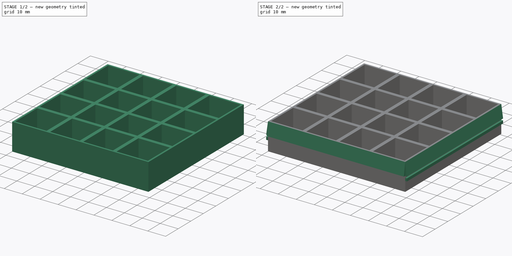
[diagram: build sequence overview — one tinted view per stage of 2, left to right]
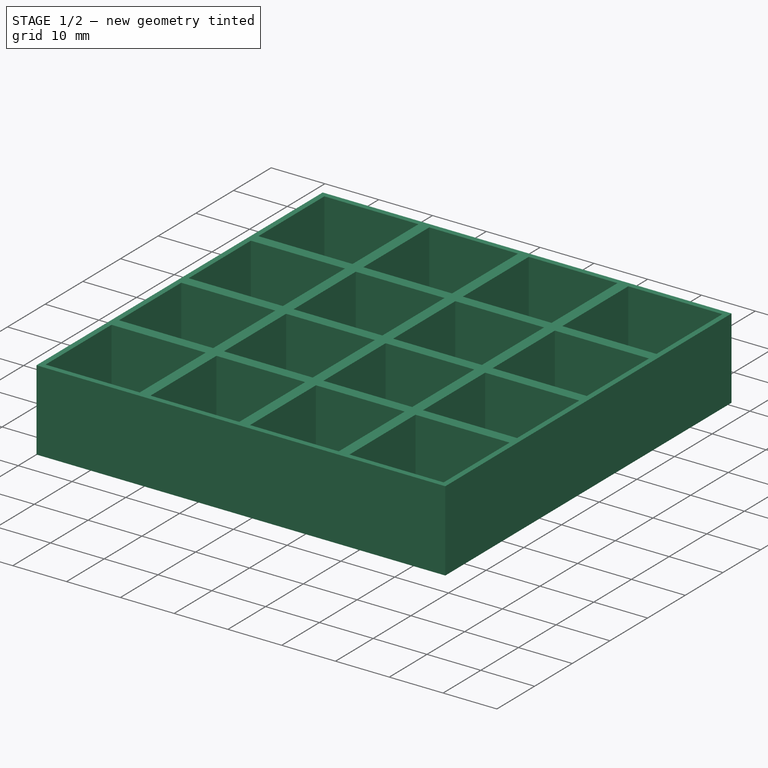
[diagram: stage 1 of 2 — iso view after this stage's code; geometry added in this stage tinted green]
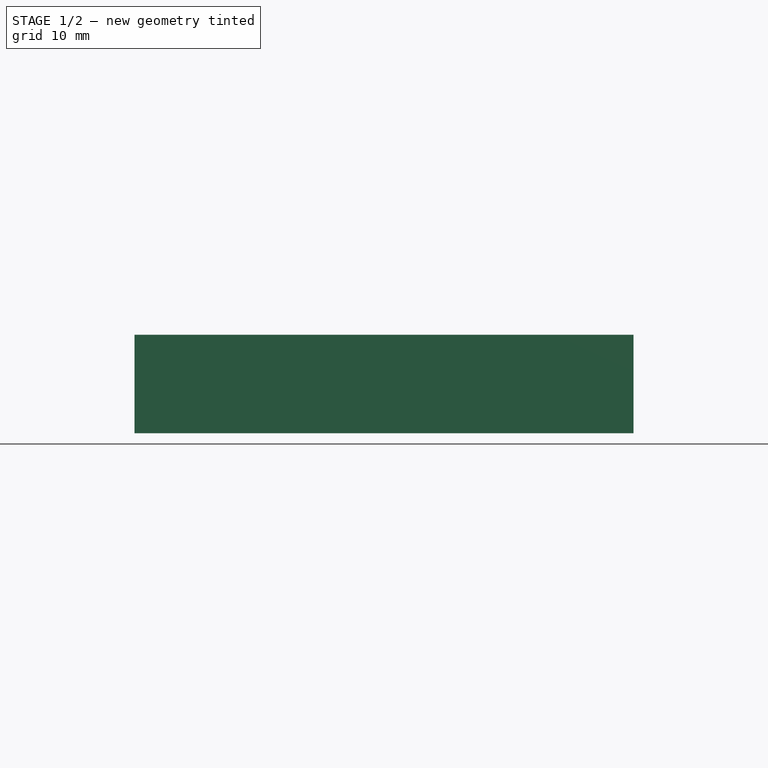
[diagram: stage 1 of 2 — front view after this stage's code; geometry added in this stage tinted green]
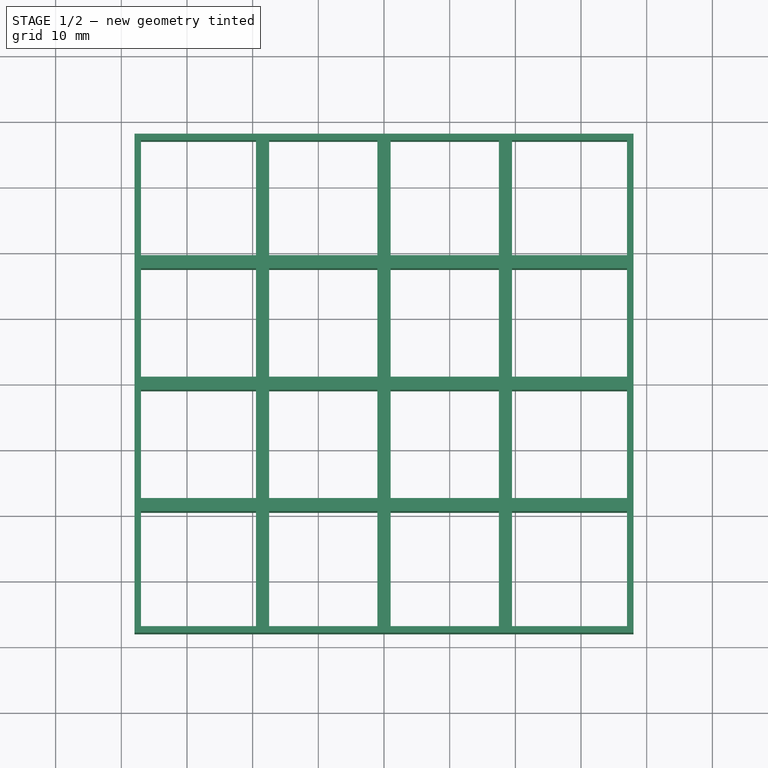
[diagram: stage 1 of 2 — top view after this stage's code; geometry added in this stage tinted green]
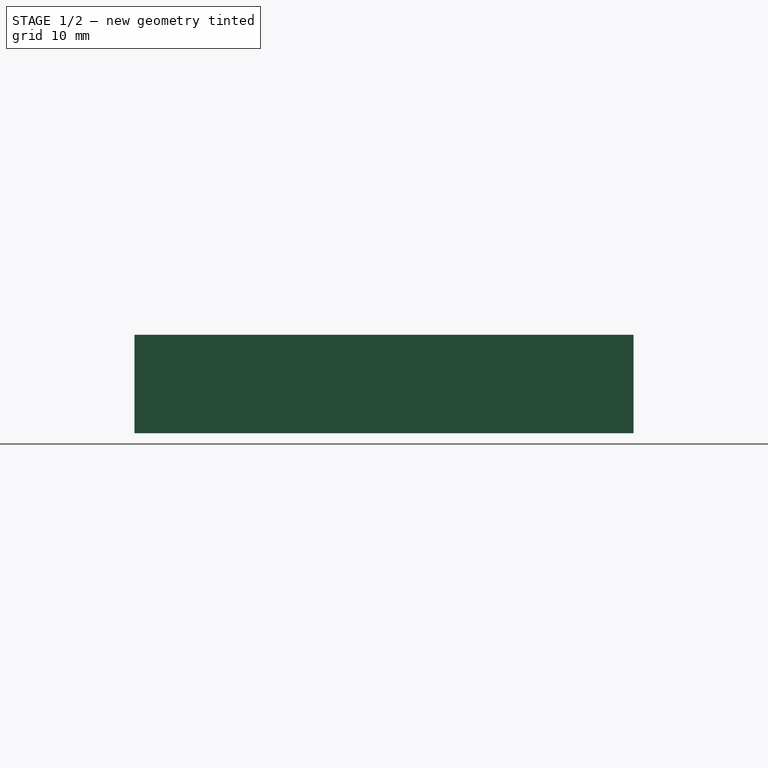
[diagram: stage 1 of 2 — right view after this stage's code; geometry added in this stage tinted green]
FCSTD DOCUMENT  (FreeCAD 1.0R39109 (Git))
Label: elidus_kuben_shade
License: All rights reserved
LicenseURL: https://en.wikipedia.org/wiki/All_rights_reserved
objects: Sketcher::SketchObject×4, PartDesign::Pad×4, PartDesign::Body×1
note: 21 computed .brp shape members not serialized (recipe doc carries the construction recipe); baked Part::Feature solids carry a one-line shape summary decoded from their .brp

FEATURE [Sketcher::SketchObject] Sketch
  ArcFitTolerance = 1e-06
  AttachmentSupport = -> [XY_Plane]
  FullyConstrained = false
  MakeInternals = false
  MapMode = 5
  sketch-geometry (9):
    g0: LineSegment StartX=-38 StartY=-38 StartZ=0 EndX=38 EndY=-38 EndZ=0
    g1: LineSegment StartX=38 StartY=-38 StartZ=0 EndX=38 EndY=38 EndZ=0
    g2: LineSegment StartX=38 StartY=38 StartZ=0 EndX=-38 EndY=38 EndZ=0
    g3: LineSegment StartX=-38 StartY=38 StartZ=0 EndX=-38 EndY=-38 EndZ=0
    g4: GeomPoint [constr] X=0 Y=0 Z=0
    g5: LineSegment StartX=-37 StartY=37 StartZ=0 EndX=-37 EndY=-37 EndZ=0
    g6: LineSegment StartX=-37 StartY=-37 StartZ=0 EndX=37 EndY=-37 EndZ=0
    g7: LineSegment StartX=37 StartY=-37 StartZ=0 EndX=37 EndY=37 EndZ=0
    g8: LineSegment StartX=37 StartY=37 StartZ=0 EndX=-37 EndY=37 EndZ=0
  constraints (18):
    c: Coincident(g0,g1)
    c: Coincident(g1,g2)
    c: Coincident(g2,g3)
    c: Coincident(g3,g0)
    c: Horizontal(g0)
    c: Horizontal(g2)
    c: Vertical(g1)
    c: Vertical(g3)
    c: Symmetric(g2,g0,g4)
    c: Distance(g1,g3) = 76
    c: Distance(g0,g2) = 76
    c: Coincident(g4,g-1)
    c: Coincident(g5,g6)
    c: Coincident(g5,g8)
    c: Coincident(g6,g7)
    c: Coincident(g7,g8)
    c: DistanceY(g5,g5) = 74
    c: DistanceX(g6,g6) = 74
FEATURE [Sketcher::SketchObject] Sketch001
  ArcFitTolerance = 1e-06
  AttachmentSupport = -> [XY_Plane]
  ExternalGeometry = -> [Sketch]
  FullyConstrained = false
  MakeInternals = false
  MapMode = 5
  sketch-geometry (36):
    g0: LineSegment StartX=-17.5 StartY=37 StartZ=0 EndX=-17.5 EndY=12.3333 EndZ=0
    g1: LineSegment StartX=-17.5 StartY=12.3333 StartZ=0 EndX=-17.5 EndY=-37 EndZ=0
    g2: LineSegment StartX=-19.5 StartY=12.3333 StartZ=0 EndX=-19.5 EndY=-37 EndZ=0
    g3: LineSegment StartX=-19.5 StartY=37 StartZ=0 EndX=-19.5 EndY=12.3333 EndZ=0
    g4: LineSegment StartX=-37 StartY=19.5 StartZ=0 EndX=-12.3333 EndY=19.5 EndZ=0
    g5: LineSegment StartX=-12.3333 StartY=19.5 StartZ=0 EndX=37 EndY=19.5 EndZ=0
    g6: LineSegment StartX=-12.3333 StartY=17.5 StartZ=0 EndX=37 EndY=17.5 EndZ=0
    g7: LineSegment StartX=-37 StartY=17.5 StartZ=0 EndX=-12.3333 EndY=17.5 EndZ=0
    g8: LineSegment StartX=19.5 StartY=37 StartZ=0 EndX=19.5 EndY=12.3333 EndZ=0
    g9: LineSegment StartX=19.5 StartY=12.3333 StartZ=0 EndX=19.5 EndY=-37 EndZ=0
    g10: LineSegment StartX=17.5 StartY=12.3333 StartZ=0 EndX=17.5 EndY=-37 EndZ=0
    g11: LineSegment StartX=17.5 StartY=37 StartZ=0 EndX=17.5 EndY=12.3333 EndZ=0
    g12: LineSegment StartX=-37 StartY=-17.5 StartZ=0 EndX=-12.3333 EndY=-17.5 EndZ=0
    g13: LineSegment StartX=-12.3333 StartY=-17.5 StartZ=0 EndX=37 EndY=-17.5 EndZ=0
    g14: LineSegment StartX=-12.3333 StartY=-19.5 StartZ=0 EndX=37 EndY=-19.5 EndZ=0
    g15: LineSegment StartX=-37 StartY=-19.5 StartZ=0 EndX=-12.3333 EndY=-19.5 EndZ=0
    g16: LineSegment StartX=-1 StartY=-37 StartZ=0 EndX=-1 EndY=-12.3333 EndZ=0
    g17: LineSegment StartX=-1 StartY=-12.3333 StartZ=0 EndX=-1 EndY=37 EndZ=0
    g18: LineSegment StartX=1 StartY=-12.3333 StartZ=0 EndX=1 EndY=37 EndZ=0
    g19: LineSegment StartX=1 StartY=-37 StartZ=0 EndX=1 EndY=-12.3333 EndZ=0
    g20: LineSegment StartX=-37 StartY=1 StartZ=0 EndX=-12.3333 EndY=1 EndZ=0
    g21: LineSegment StartX=-12.3333 StartY=1 StartZ=0 EndX=37 EndY=1 EndZ=0
    g22: LineSegment StartX=-12.3333 StartY=-1 StartZ=0 EndX=37 EndY=-1 EndZ=0
    g23: LineSegment StartX=-37 StartY=-1 StartZ=0 EndX=-12.3333 EndY=-1 EndZ=0
    g24: LineSegment StartX=-37 StartY=-19.5 StartZ=0 EndX=-37 EndY=-17.5 EndZ=0
    g25: LineSegment StartX=-37 StartY=-1 StartZ=0 EndX=-37 EndY=1 EndZ=0
    g26: LineSegment StartX=-37 StartY=17.5 StartZ=0 EndX=-37 EndY=19.5 EndZ=0
    g27: LineSegment StartX=-19.5 StartY=37 StartZ=0 EndX=-17.5 EndY=37 EndZ=0
    g28: LineSegment StartX=-1 StartY=37 StartZ=0 EndX=1 EndY=37 EndZ=0
    g29: LineSegment StartX=17.5 StartY=37 StartZ=0 EndX=19.5 EndY=37 EndZ=0
    g30: LineSegment StartX=37 StartY=19.5 StartZ=0 EndX=37 EndY=17.5 EndZ=0
    g31: LineSegment StartX=37 StartY=1 StartZ=0 EndX=37 EndY=-1 EndZ=0
    g32: LineSegment StartX=37 StartY=-17.5 StartZ=0 EndX=37 EndY=-19.5 EndZ=0
    g33: LineSegment StartX=17.5 StartY=-37 StartZ=0 EndX=19.5 EndY=-37 EndZ=0
    g34: LineSegment StartX=-1 StartY=-37 StartZ=0 EndX=1 EndY=-37 EndZ=0
    g35: LineSegment StartX=-17.5 StartY=-37 StartZ=0 EndX=-19.5 EndY=-37 EndZ=0
  constraints (40):
    c: Coincident(g16,g17)
    c: Coincident(g18,g19)
    c: Coincident(g20,g21)
    c: Coincident(g22,g23)
    c: Coincident(g24,g15)
    c: Coincident(g24,g12)
    c: Vertical(g24)
    c: Coincident(g25,g23)
    c: Coincident(g25,g20)
    c: Vertical(g25)
    c: Coincident(g26,g7)
    c: Coincident(g26,g4)
    c: Vertical(g26)
    c: Coincident(g27,g3)
    c: Coincident(g27,g0)
    c: Horizontal(g27)
    c: Coincident(g28,g17)
    c: Coincident(g28,g18)
    c: Horizontal(g28)
    c: Coincident(g29,g11)
    c: Coincident(g29,g8)
    c: Horizontal(g29)
    c: Coincident(g30,g5)
    c: Coincident(g30,g6)
    c: Vertical(g30)
    c: Coincident(g31,g21)
    c: Coincident(g31,g22)
    c: Vertical(g31)
    c: Coincident(g32,g13)
    c: Coincident(g32,g14)
    c: Vertical(g32)
    c: Coincident(g33,g10)
    c: Coincident(g33,g9)
    c: Horizontal(g33)
    c: Coincident(g34,g16)
    c: Coincident(g34,g19)
    c: Horizontal(g34)
    c: Coincident(g35,g1)
    c: Coincident(g35,g2)
    c: Horizontal(g35)
FEATURE [PartDesign::Pad] Pad  label="External Frame"
  Direction = (0,0,1)
  Length = 15
  Length2 = 10
  Profile = -> Sketch
  ReferenceAxis = -> Sketch [N_Axis]
  Refine = true
  Suppressed = false
  Type = 0
FEATURE [PartDesign::Pad] Pad001  label="Internal Frame"
  BaseFeature = -> Pad
  Direction = (0,0,1)
  Length = 15
  Length2 = 10
  Profile = -> Sketch001
  ReferenceAxis = -> Sketch001 [N_Axis]
  Refine = true
  Suppressed = false
  Type = 0
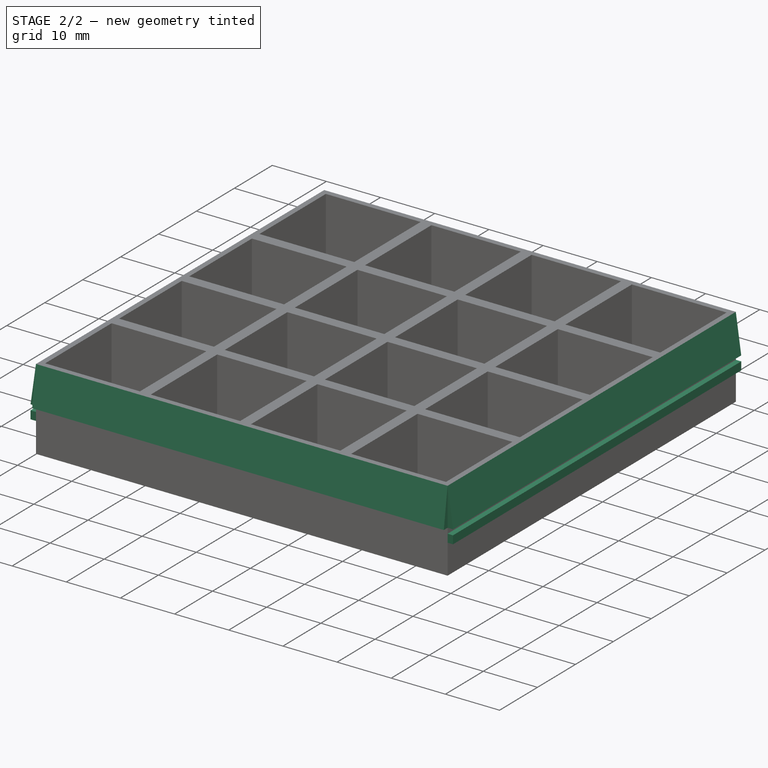
[diagram: stage 2 of 2 — iso view after this stage's code; geometry added in this stage tinted green]
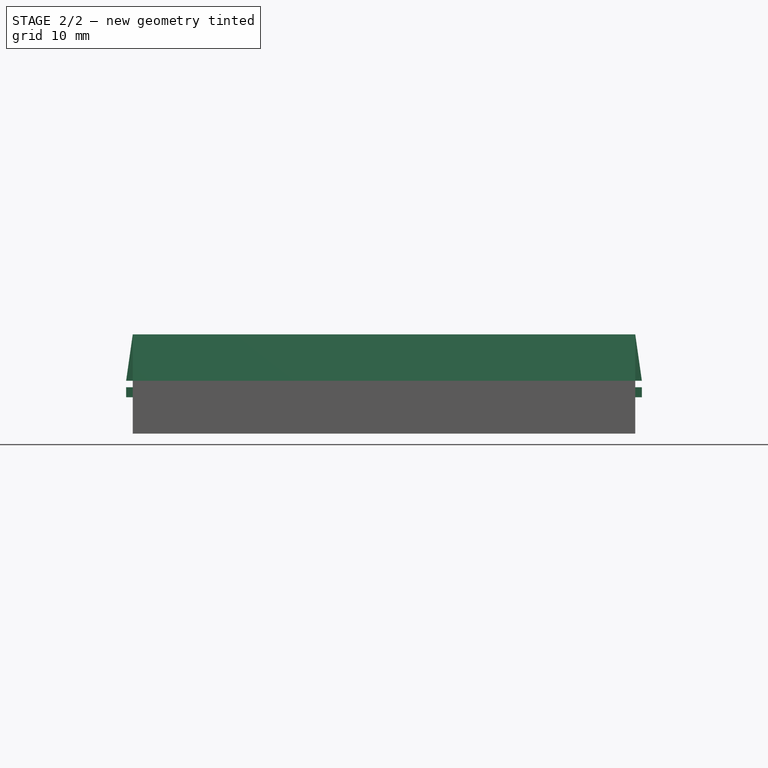
[diagram: stage 2 of 2 — front view after this stage's code; geometry added in this stage tinted green]
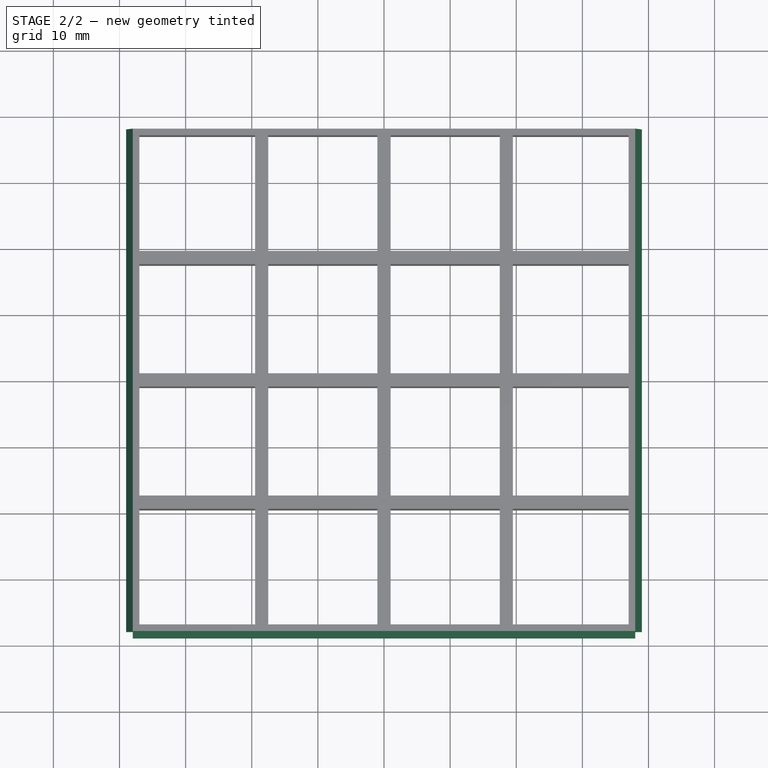
[diagram: stage 2 of 2 — top view after this stage's code; geometry added in this stage tinted green]
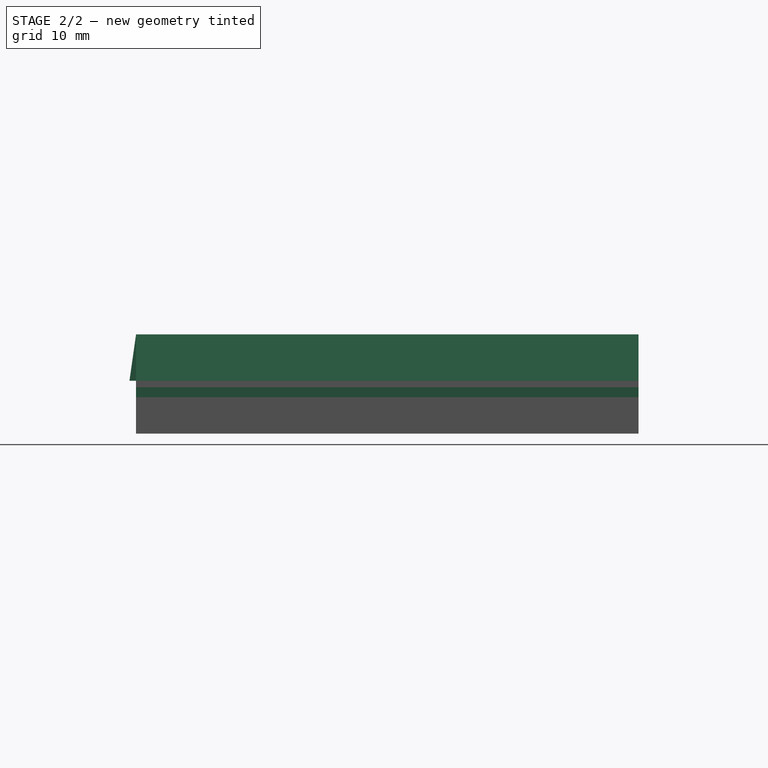
[diagram: stage 2 of 2 — right view after this stage's code; geometry added in this stage tinted green]
FEATURE [Sketcher::SketchObject] Sketch002
  ArcFitTolerance = 1e-06
  AttachmentSupport = -> [Pad001]
  ExternalGeometry = -> [Pad001]
  FullyConstrained = true
  MakeInternals = false
  MapMode = 5
  Placement = pos=(0,-38,0) rot=(1,0,0;1.5708rad)
  sketch-geometry (21):
    g0: GeomPoint X=-38 Y=8 Z=0
    g1: LineSegment StartX=-39 StartY=8 StartZ=0 EndX=-38 EndY=8 EndZ=0
    g2: LineSegment StartX=-39 StartY=8 StartZ=0 EndX=-38 EndY=15 EndZ=0
    g3: LineSegment StartX=-38 StartY=8 StartZ=0 EndX=-38 EndY=7 EndZ=0
    g4: LineSegment StartX=-38 StartY=7 StartZ=0 EndX=-39 EndY=7 EndZ=0
    g5: LineSegment StartX=-38 StartY=5.5 StartZ=0 EndX=-39 EndY=5.5 EndZ=0
    g6: LineSegment StartX=-39 StartY=7 StartZ=0 EndX=-39 EndY=5.5 EndZ=0
    g7: LineSegment StartX=38 StartY=8 StartZ=0 EndX=39 EndY=8 EndZ=0
    g8: LineSegment StartX=38 StartY=15 StartZ=0 EndX=39 EndY=8 EndZ=0
    g9: LineSegment StartX=38 StartY=8 StartZ=0 EndX=38 EndY=7 EndZ=0
    g10: LineSegment StartX=38 StartY=7 StartZ=0 EndX=39 EndY=7 EndZ=0
    g11: LineSegment StartX=38 StartY=5.5 StartZ=0 EndX=39 EndY=5.5 EndZ=0
    g12: LineSegment StartX=39 StartY=7 StartZ=0 EndX=39 EndY=5.5 EndZ=0
    g13: LineSegment StartX=-38 StartY=5.5 StartZ=0 EndX=-38 EndY=0 EndZ=0
    g14: LineSegment StartX=38 StartY=5.5 StartZ=0 EndX=38 EndY=0 EndZ=0
    g15: LineSegment StartX=-38 StartY=15 StartZ=0 EndX=-37 EndY=15 EndZ=0
    g16: LineSegment StartX=-38 StartY=0 StartZ=0 EndX=-37 EndY=0 EndZ=0
    g17: LineSegment StartX=-37 StartY=15 StartZ=0 EndX=-37 EndY=0 EndZ=0
    g18: LineSegment StartX=38 StartY=15 StartZ=0 EndX=37 EndY=15 EndZ=0
    g19: LineSegment StartX=38 StartY=0 StartZ=0 EndX=37 EndY=0 EndZ=0
    g20: LineSegment StartX=37 StartY=15 StartZ=0 EndX=37 EndY=0 EndZ=0
  constraints (59):
    c: DistanceY(g0) = 8
    c: Coincident(g1,g0)
    c: Horizontal(g1)
    c: DistanceX(g1,g1) = 1
    c: Coincident(g2,g1)
    c: Distance(g3) = 1
    c: Coincident(g3,g0)
    c: Vertical(g3)
    c: Distance(g4) = 1
    c: Coincident(g4,g3)
    c: Horizontal(g4)
    c: Distance(g5) = 1
    c: Horizontal(g5)
    c: Coincident(g6,g4)
    c: Coincident(g6,g5)
    c: Distance(g7) = 1
    c: Horizontal(g7)
    c: Coincident(g8,g7)
    c: Distance(g9) = 1
    c: PointOnObject(g9,g-3)
    c: PointOnObject(g11,g-3)
    c: Distance(g10) = 1
    c: Coincident(g10,g9)
    c: Horizontal(g10)
    c: Distance(g11) = 1
    c: Horizontal(g11)
    c: Coincident(g12,g10)
    c: Coincident(g12,g11)
    c: Coincident(g13,g-5)
    c: Coincident(g14,g-5)
    c: Distance(g15) = 1
    c: PointOnObject(g15,g-4)
    c: Distance(g16) = 1
    c: Coincident(g16,g13)
    c: PointOnObject(g16,g-5)
    c: Coincident(g17,g15)
    c: Coincident(g17,g16)
    c: Distance(g18) = 1
    c: PointOnObject(g18,g-4)
    c: Distance(g19) = 1
    c: Coincident(g19,g14)
    c: PointOnObject(g19,g-5)
    c: Coincident(g20,g18)
    c: Coincident(g20,g19)
    c: Coincident(g15,g2)
    c: DistanceY(g13,g3) = 1.5
    c: Parallel(g13,g17)
    c: Coincident(g5,g13)
    c: Coincident(g8,g18)
    c: DistanceY(g7,g8) = 7
    c: Coincident(g9,g7)
    c: DistanceY(g11,g9) = 1.5
    c: Coincident(g14,g11)
    c: DistanceY(g0,g2) = 7
    c: Parallel(g17,g-2)
    c: Parallel(g6,g17)
    c: Parallel(g9,g20)
    c: Parallel(g18,g-5)
    c: Parallel(g20,g-2)
FEATURE [PartDesign::Pad] Pad002  label="Side Teeth"
  BaseFeature = -> Pad001
  Direction = (0,-1,2e-16)
  Length = 76
  Length2 = 10
  Profile = -> Sketch002
  ReferenceAxis = -> Sketch002 [N_Axis]
  Refine = true
  Reversed = true
  Suppressed = false
  Type = 0
FEATURE [Sketcher::SketchObject] Sketch004
  ArcFitTolerance = 1e-06
  AttachmentSupport = -> [Pad]
  ExternalGeometry = -> [Pad,Sketch]
  FullyConstrained = false
  MakeInternals = false
  MapMode = 5
  Placement = pos=(-38,0,0) rot=(0.57735,-0.57735,-0.57735;2.0944rad)
  sketch-geometry (4):
    g0: LineSegment StartX=38 StartY=15 StartZ=0 EndX=37 EndY=15 EndZ=0
    g1: LineSegment StartX=37 StartY=15 StartZ=0 EndX=37 EndY=8 EndZ=0
    g2: LineSegment StartX=38 StartY=15 StartZ=0 EndX=39 EndY=8 EndZ=0
    g3: LineSegment StartX=37 StartY=8 StartZ=0 EndX=39 EndY=8 EndZ=0
  constraints (10):
    c: Distance(g0) = 1
    c: Distance(g1) = 7
    c: Parallel(g-2,g1)
    c: Coincident(g1,g0)
    c: Coincident(g0,g-3)
    c: Coincident(g2,g0)
    c: Distance(g3) = 2
    c: Horizontal(g3)
    c: Coincident(g3,g1)
    c: Coincident(g3,g2)
FEATURE [PartDesign::Pad] Pad004  label="Back Side"
  BaseFeature = -> Pad002
  Direction = (-1,0,0)
  Length = 76
  Length2 = 10
  Profile = -> Sketch004
  ReferenceAxis = -> Sketch004 [N_Axis]
  Refine = true
  Reversed = true
  Suppressed = false
  Type = 0
FEATURE [PartDesign::Body] Body
  AllowCompound = false
  Group = -> [Sketch,Sketch001,Pad,Pad001,Sketch002,Pad002,Sketch004,Pad004]
  Origin = -> Origin
  Tip = -> Pad004
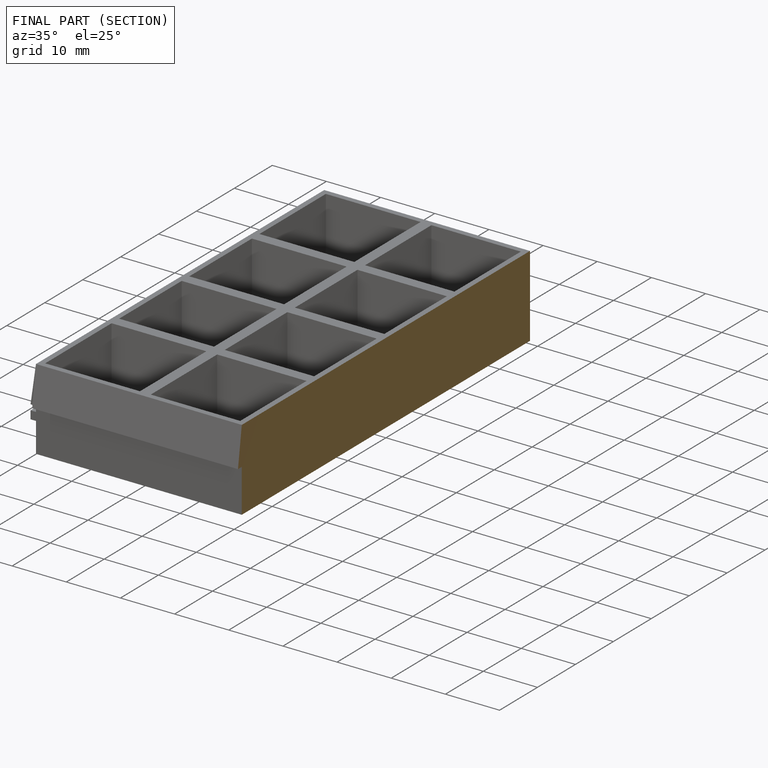
[diagram: finished part — half-section view (interior)]
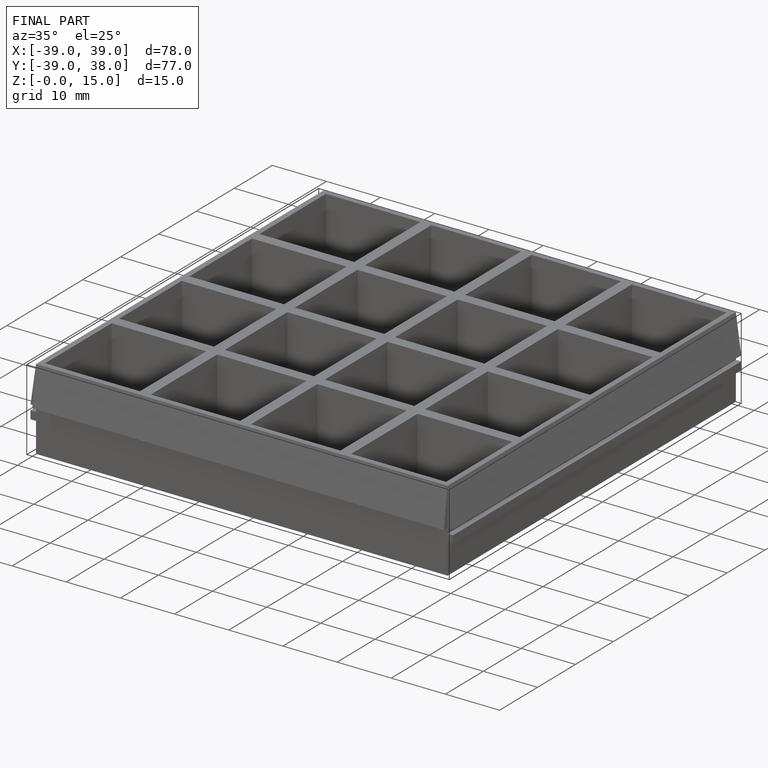
[diagram: finished part — iso view with bounding-box wireframe]
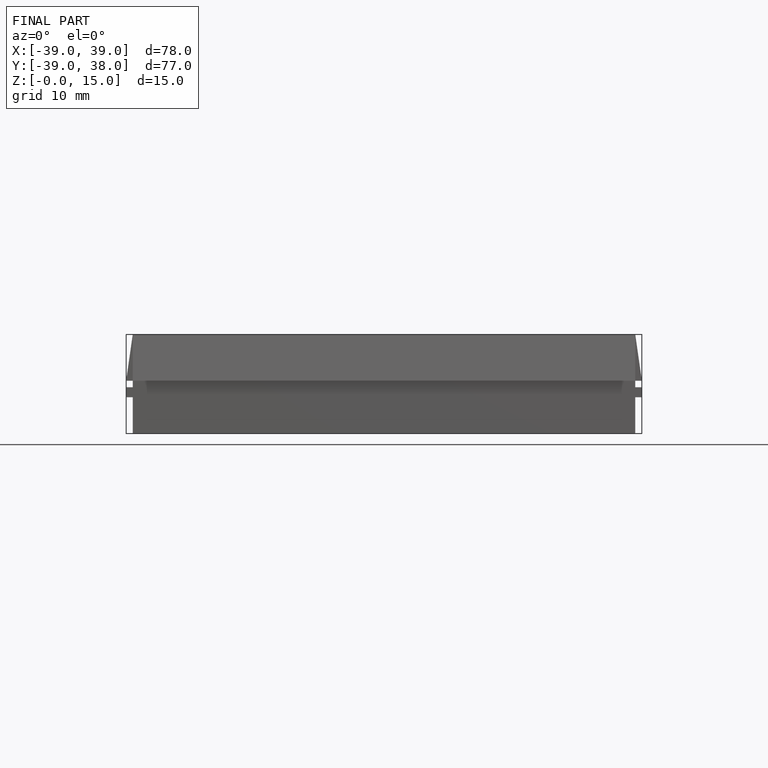
[diagram: finished part — front view with bounding-box wireframe]
